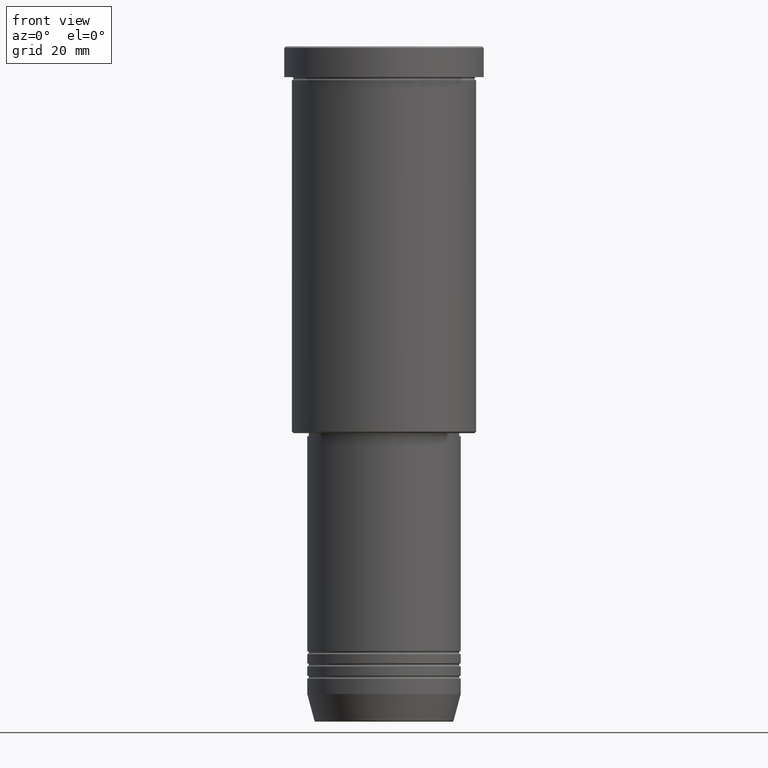
[diagram: clean part render]
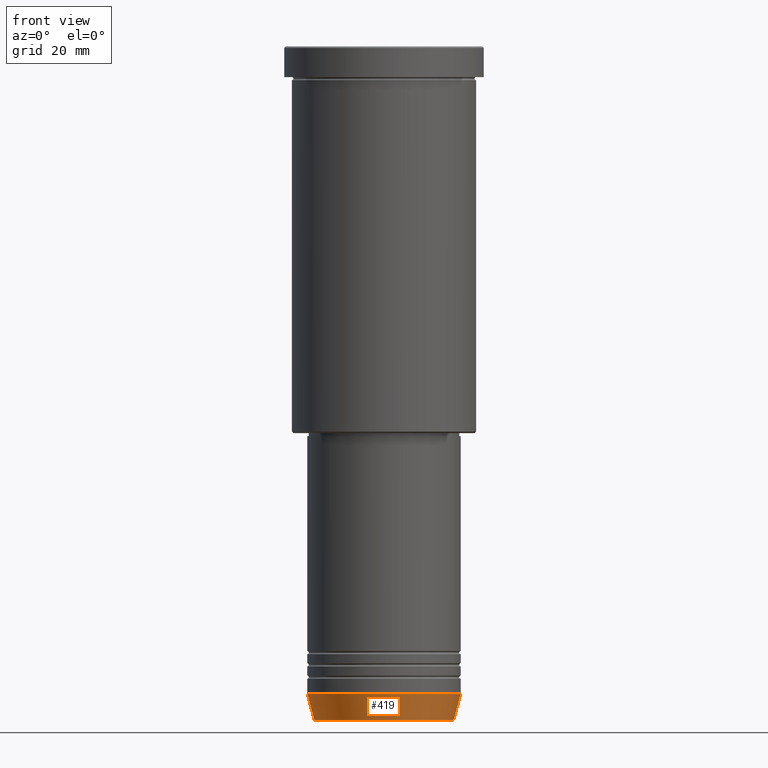
[diagram: same view with one face highlighted and labeled with its STEP entity id]
A machine part, front view. The second image highlights one B-rep face of the part: STEP entity #419.
In plain terms, the highlighted conical surface has half-angle 15 deg.
Its self-contained STEP definition (entity closure, byte-faithful):
#22 = CARTESIAN_POINT ( 'NONE',  ( -25.00000000000000000, 3.061616997868383043E-15, -211.0000000000000000 ) ) ;
#47 = AXIS2_PLACEMENT_3D ( 'NONE', #1086, #96, #816 ) ;
#54 = VERTEX_POINT ( 'NONE', #281 ) ;
#70 = DIRECTION ( 'NONE',  ( -0.000000000000000000, -0.000000000000000000, 1.000000000000000000 ) ) ;
#85 = AXIS2_PLACEMENT_3D ( 'NONE', #193, #70, #1093 ) ;
#96 = DIRECTION ( 'NONE',  ( -0.000000000000000000, -0.000000000000000000, 1.000000000000000000 ) ) ;
#129 = DIRECTION ( 'NONE',  ( -0.2588190451025212391, 3.169619151431771721E-17, 0.9659258262890680902 ) ) ;
#132 = CARTESIAN_POINT ( 'NONE',  ( 25.00000000000000000, 0.000000000000000000, -211.0000000000000000 ) ) ;
#151 = EDGE_LOOP ( 'NONE', ( #959, #936, #1035, #814 ) ) ;
#193 = CARTESIAN_POINT ( 'NONE',  ( 0.000000000000000000, 0.000000000000000000, -211.0000000000000000 ) ) ;
#198 = VECTOR ( 'NONE', #582, 1000.000000000000114 ) ;
#213 = LINE ( 'NONE', #132, #198 ) ;
#258 = DIRECTION ( 'NONE',  ( 1.000000000000000000, 0.000000000000000000, 0.000000000000000000 ) ) ;
#277 = VERTEX_POINT ( 'NONE', #781 ) ;
#281 = CARTESIAN_POINT ( 'NONE',  ( -22.68775668727493766, 2.920032929279452187E-15, -219.6294095225512422 ) ) ;
#308 = CONICAL_SURFACE ( 'NONE', #1054, 25.00000000000000000, 0.2617993877991499629 ) ;
#396 = LINE ( 'NONE', #22, #993 ) ;
#419 = ADVANCED_FACE ( 'NONE', ( #707 ), #308, .T. ) ;
#424 = CARTESIAN_POINT ( 'NONE',  ( 22.68775668727493766, 0.000000000000000000, -219.6294095225512422 ) ) ;
#469 = EDGE_CURVE ( 'NONE', #54, #804, #1132, .T. ) ;
#536 = VERTEX_POINT ( 'NONE', #891 ) ;
#582 = DIRECTION ( 'NONE',  ( 0.2588190451025212391, 0.000000000000000000, 0.9659258262890680902 ) ) ;
#610 = EDGE_CURVE ( 'NONE', #54, #536, #396, .T. ) ;
#707 = FACE_OUTER_BOUND ( 'NONE', #151, .T. ) ;
#781 = CARTESIAN_POINT ( 'NONE',  ( 25.00000000000000000, 0.000000000000000000, -211.0000000000000000 ) ) ;
#804 = VERTEX_POINT ( 'NONE', #424 ) ;
#814 = ORIENTED_EDGE ( 'NONE', *, *, #1024, .F. ) ;
#816 = DIRECTION ( 'NONE',  ( 1.000000000000000000, 0.000000000000000000, 0.000000000000000000 ) ) ;
#891 = CARTESIAN_POINT ( 'NONE',  ( -25.00000000000000000, 3.061616997868383043E-15, -211.0000000000000000 ) ) ;
#936 = ORIENTED_EDGE ( 'NONE', *, *, #469, .T. ) ;
#959 = ORIENTED_EDGE ( 'NONE', *, *, #610, .F. ) ;
#979 = DIRECTION ( 'NONE',  ( -0.000000000000000000, -0.000000000000000000, 1.000000000000000000 ) ) ;
#980 = CIRCLE ( 'NONE', #85, 25.00000000000000000 ) ;
#993 = VECTOR ( 'NONE', #129, 1000.000000000000114 ) ;
#1024 = EDGE_CURVE ( 'NONE', #536, #277, #980, .T. ) ;
#1035 = ORIENTED_EDGE ( 'NONE', *, *, #1136, .T. ) ;
#1054 = AXIS2_PLACEMENT_3D ( 'NONE', #1066, #979, #258 ) ;
#1066 = CARTESIAN_POINT ( 'NONE',  ( 0.000000000000000000, 0.000000000000000000, -211.0000000000000000 ) ) ;
#1086 = CARTESIAN_POINT ( 'NONE',  ( 0.000000000000000000, 0.000000000000000000, -219.6294095225512422 ) ) ;
#1093 = DIRECTION ( 'NONE',  ( 1.000000000000000000, 0.000000000000000000, 0.000000000000000000 ) ) ;
#1132 = CIRCLE ( 'NONE', #47, 22.68775668727493766 ) ;
#1136 = EDGE_CURVE ( 'NONE', #804, #277, #213, .T. ) ;